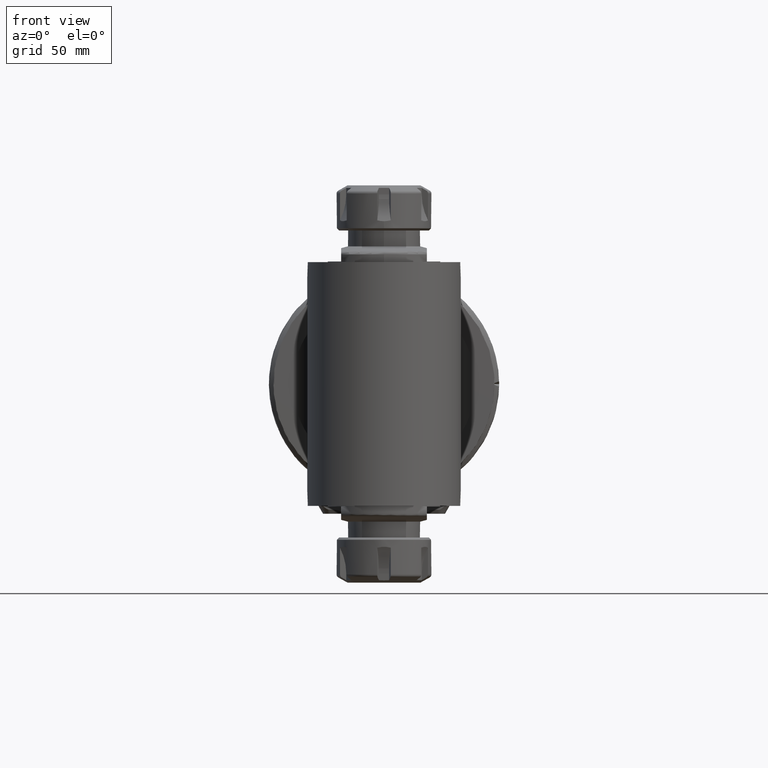
[diagram: clean part render]
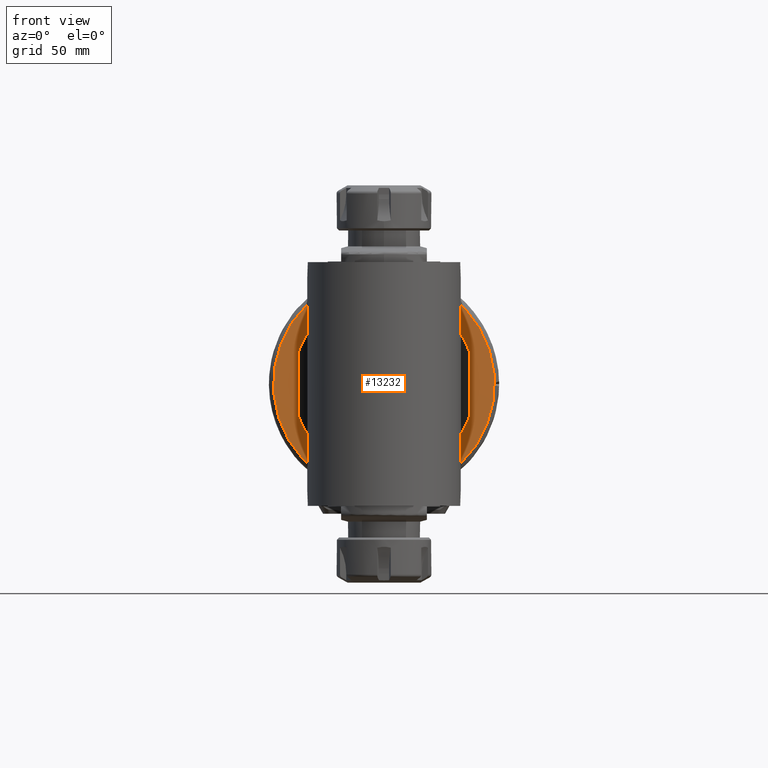
[diagram: same view with one face highlighted and labeled with its STEP entity id]
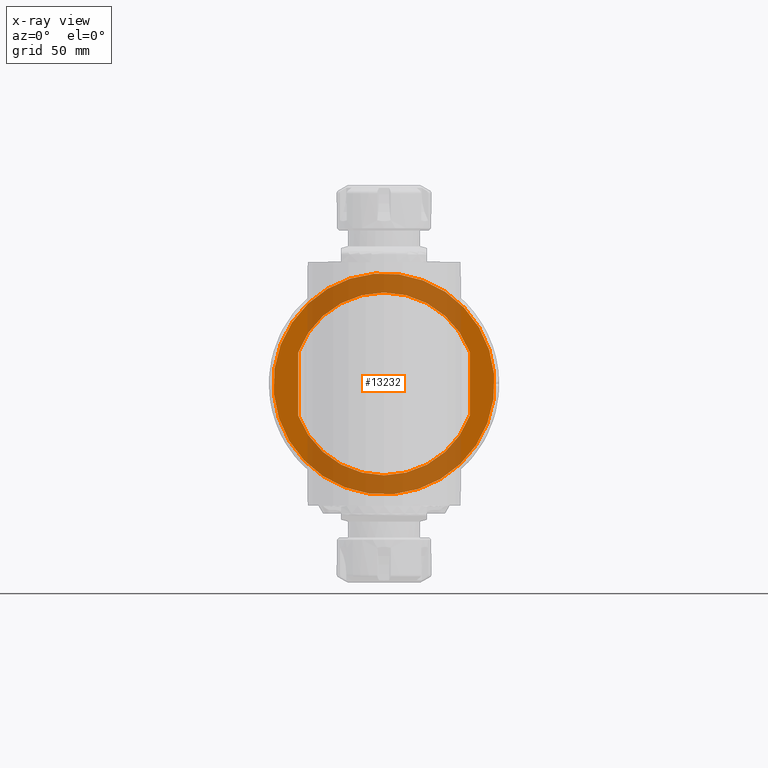
[diagram: x-ray of the same camera — body ghosted, the highlighted face saturated]
A machine part, front view. The second image highlights one B-rep face of the part: STEP entity #13232.
The next image is the same camera in x-ray: the body ghosted, the highlighted face saturated — about 54% of this face is hidden behind the body in this view.
In plain terms, the highlighted planar face has unit normal (0, -1, -0).
Its self-contained STEP definition (entity closure, byte-faithful):
#330=FACE_BOUND('',#2854,.T.);
#948=PLANE('',#14829);
#1922=FACE_OUTER_BOUND('',#2853,.T.);
#2853=EDGE_LOOP('',(#11926));
#2854=EDGE_LOOP('',(#11927,#11928,#11929,#11930));
#3654=CIRCLE('',#14828,40.5);
#3655=CIRCLE('',#14830,49.);
#3656=CIRCLE('',#14831,40.5);
#4464=LINE('',#53516,#5287);
#4465=LINE('',#53517,#5288);
#5287=VECTOR('',#18606,28.01785145224);
#5288=VECTOR('',#18607,28.01785145224);
#6502=VERTEX_POINT('',#53475);
#6503=VERTEX_POINT('',#53476);
#6504=VERTEX_POINT('',#53511);
#6505=VERTEX_POINT('',#53513);
#6506=VERTEX_POINT('',#53514);
#8342=EDGE_CURVE('',#6502,#6503,#3654,.T.);
#8345=EDGE_CURVE('',#6504,#6504,#3655,.T.);
#8346=EDGE_CURVE('',#6505,#6506,#3656,.T.);
#8347=EDGE_CURVE('',#6502,#6506,#4464,.T.);
#8348=EDGE_CURVE('',#6505,#6503,#4465,.T.);
#11926=ORIENTED_EDGE('',*,*,#8345,.T.);
#11927=ORIENTED_EDGE('',*,*,#8346,.T.);
#11928=ORIENTED_EDGE('',*,*,#8347,.F.);
#11929=ORIENTED_EDGE('',*,*,#8342,.T.);
#11930=ORIENTED_EDGE('',*,*,#8348,.F.);
#13232=ADVANCED_FACE('',(#1922,#330),#948,.T.);
#14828=AXIS2_PLACEMENT_3D('',#53477,#18598,#18599);
#14829=AXIS2_PLACEMENT_3D('',#53510,#18600,#18601);
#14830=AXIS2_PLACEMENT_3D('',#53512,#18602,#18603);
#14831=AXIS2_PLACEMENT_3D('',#53515,#18604,#18605);
#18598=DIRECTION('center_axis',(0.,1.,0.));
#18599=DIRECTION('ref_axis',(0.345899400644989,0.,0.93827160493827));
#18600=DIRECTION('center_axis',(0.,-1.,0.));
#18601=DIRECTION('ref_axis',(-1.,0.,0.));
#18602=DIRECTION('center_axis',(0.,-1.,0.));
#18603=DIRECTION('ref_axis',(-0.0871557427476639,0.,0.996194698091745));
#18604=DIRECTION('center_axis',(0.,1.,0.));
#18605=DIRECTION('ref_axis',(-0.345899400644989,0.,-0.93827160493827));
#18606=DIRECTION('',(-1.,0.,0.));
#18607=DIRECTION('',(1.,0.,0.));
#53475=CARTESIAN_POINT('',(3.16896751404,40.5,38.));
#53476=CARTESIAN_POINT('',(3.168967514039,40.5,-38.));
#53477=CARTESIAN_POINT('Origin',(-10.83995821208,40.5,0.));
#53510=CARTESIAN_POINT('Origin',(-10.83995821208,40.5,0.));
#53511=CARTESIAN_POINT('',(-15.1105896067155,40.5,48.8135402064955));
#53512=CARTESIAN_POINT('Origin',(-10.83995821208,40.5,0.));
#53513=CARTESIAN_POINT('',(-24.8488839382,40.5,-38.));
#53514=CARTESIAN_POINT('',(-24.8488839382,40.5,38.));
#53515=CARTESIAN_POINT('Origin',(-10.83995821208,40.5,0.));
#53516=CARTESIAN_POINT('',(3.16896751404,40.5,38.));
#53517=CARTESIAN_POINT('',(-24.8488839382,40.5,-38.));